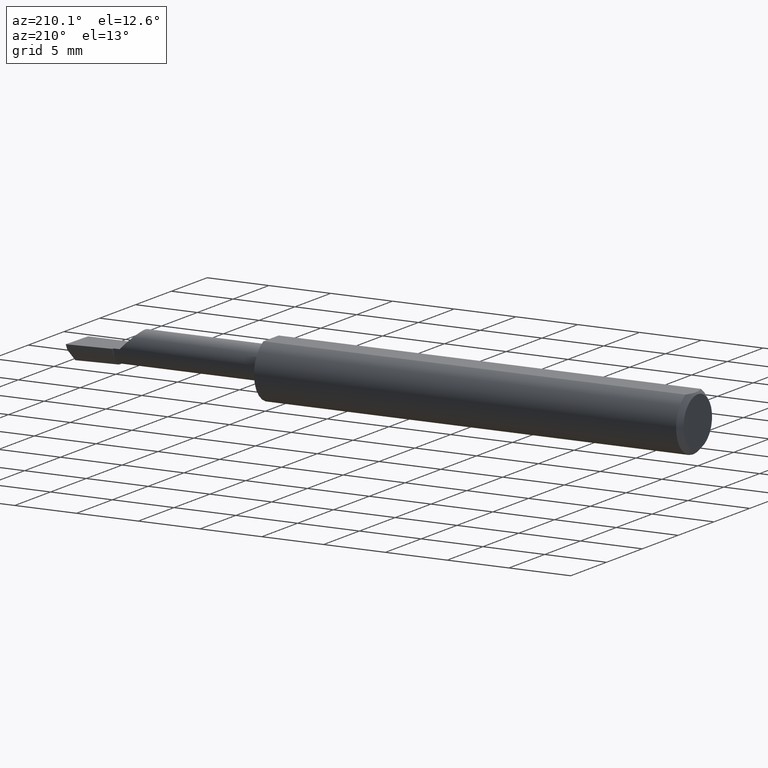
[diagram: clean part render]
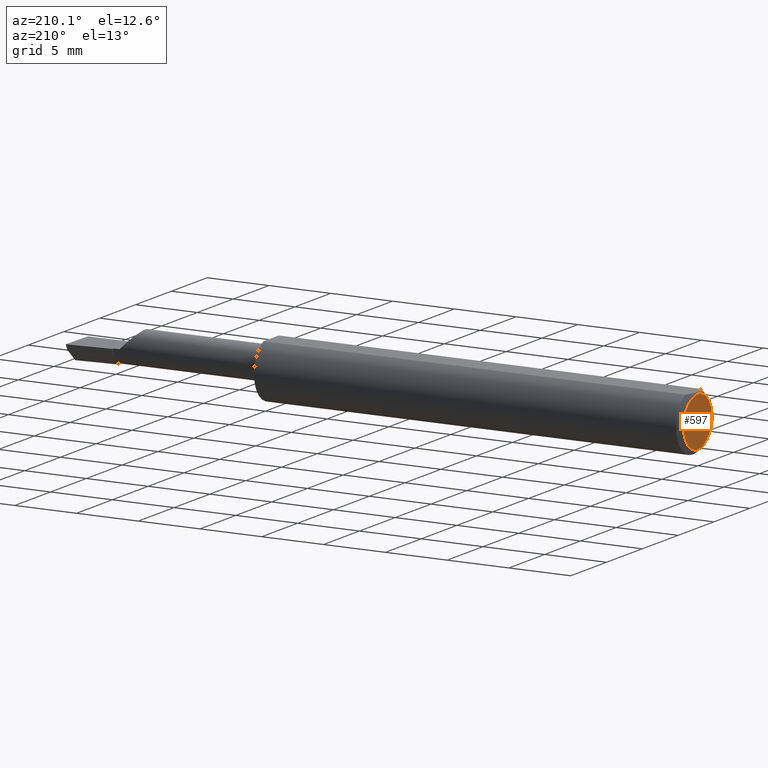
[diagram: same view with one face highlighted and labeled with its STEP entity id]
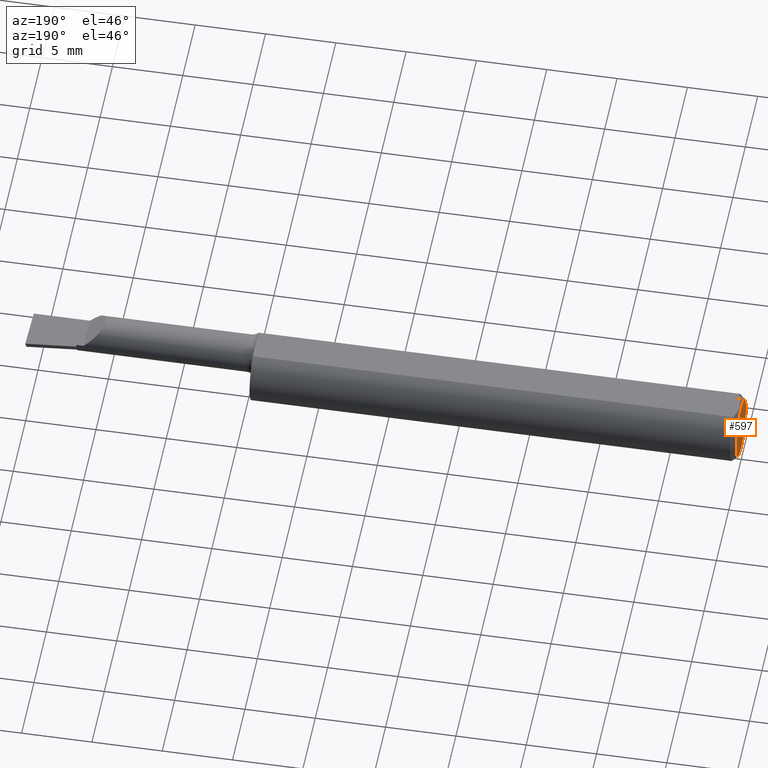
[diagram: same view with one face highlighted and labeled with its STEP entity id]
A machine part, auxiliary view. The second image highlights one B-rep face of the part: STEP entity #597.
A second angle (auxiliary view) of the same face is appended — the face is thin or edge-on in the first view.
In plain terms, the highlighted planar face has unit normal (1, 0, 0).
Its self-contained STEP definition (entity closure, byte-faithful):
#8 = AXIS2_PLACEMENT_3D ( 'NONE', #170, #459, #118 ) ;
#75 = CIRCLE ( 'NONE', #8, 0.07859999999999965625 ) ;
#80 = CARTESIAN_POINT ( 'NONE',  ( 0.000000000000000000, 0.000000000000000000, 0.000000000000000000 ) ) ;
#104 = EDGE_LOOP ( 'NONE', ( #561, #156 ) ) ;
#118 = DIRECTION ( 'NONE',  ( 0.000000000000000000, 0.000000000000000000, 1.000000000000000000 ) ) ;
#121 = CARTESIAN_POINT ( 'NONE',  ( 0.000000000000000000, 1.054420894065869177E-17, 0.07859999999999965625 ) ) ;
#131 = EDGE_CURVE ( 'NONE', #478, #481, #315, .T. ) ;
#156 = ORIENTED_EDGE ( 'NONE', *, *, #131, .T. ) ;
#170 = CARTESIAN_POINT ( 'NONE',  ( 0.000000000000000000, 0.000000000000000000, 0.000000000000000000 ) ) ;
#174 = DIRECTION ( 'NONE',  ( 0.000000000000000000, 0.000000000000000000, 1.000000000000000000 ) ) ;
#218 = CARTESIAN_POINT ( 'NONE',  ( 0.000000000000000000, 0.000000000000000000, -0.07859999999999965625 ) ) ;
#315 = CIRCLE ( 'NONE', #604, 0.07859999999999965625 ) ;
#321 = FACE_OUTER_BOUND ( 'NONE', #104, .T. ) ;
#337 = AXIS2_PLACEMENT_3D ( 'NONE', #511, #562, #515 ) ;
#411 = DIRECTION ( 'NONE',  ( -1.000000000000000000, -0.000000000000000000, -0.000000000000000000 ) ) ;
#413 = EDGE_CURVE ( 'NONE', #481, #478, #75, .T. ) ;
#459 = DIRECTION ( 'NONE',  ( -1.000000000000000000, -0.000000000000000000, -0.000000000000000000 ) ) ;
#478 = VERTEX_POINT ( 'NONE', #121 ) ;
#481 = VERTEX_POINT ( 'NONE', #218 ) ;
#511 = CARTESIAN_POINT ( 'NONE',  ( 0.000000000000000000, 0.000000000000000000, 0.000000000000000000 ) ) ;
#515 = DIRECTION ( 'NONE',  ( 0.000000000000000000, 0.000000000000000000, -1.000000000000000000 ) ) ;
#518 = PLANE ( 'NONE',  #337 ) ;
#561 = ORIENTED_EDGE ( 'NONE', *, *, #413, .T. ) ;
#562 = DIRECTION ( 'NONE',  ( 1.000000000000000000, 0.000000000000000000, 0.000000000000000000 ) ) ;
#597 = ADVANCED_FACE ( 'NONE', ( #321 ), #518, .F. ) ;
#604 = AXIS2_PLACEMENT_3D ( 'NONE', #80, #411, #174 ) ;